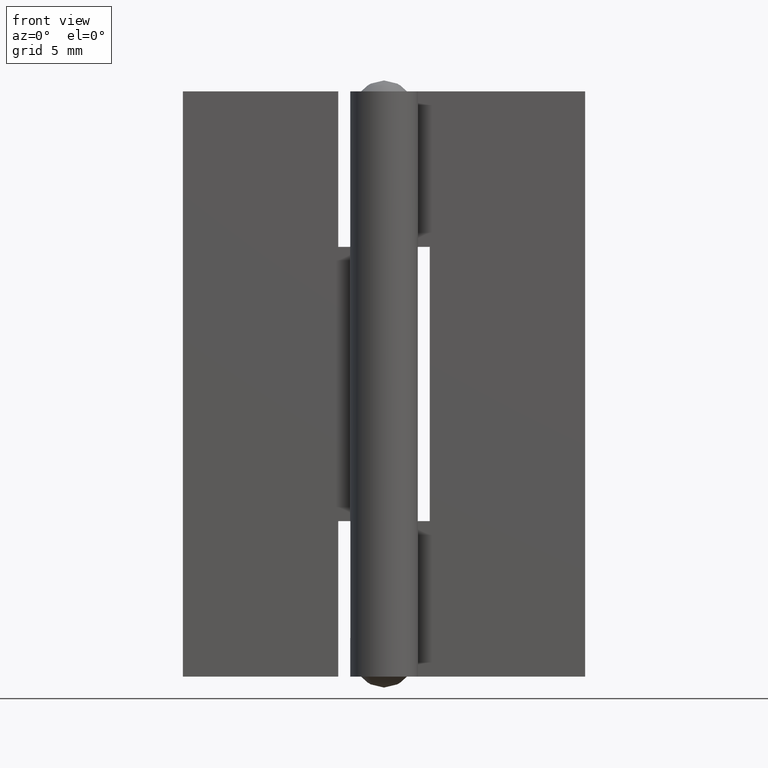
[diagram: clean part render]
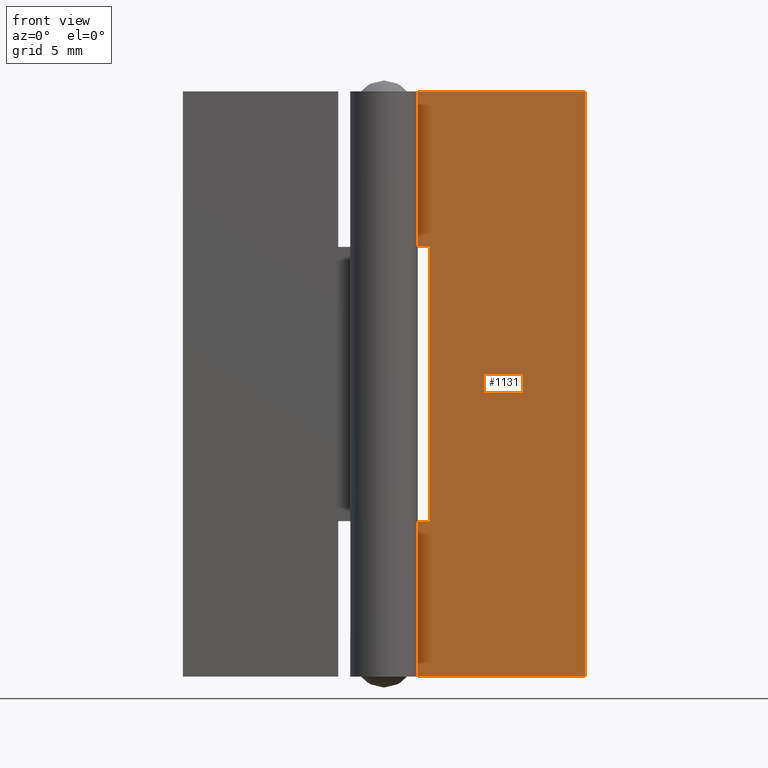
[diagram: same view with one face highlighted and labeled with its STEP entity id]
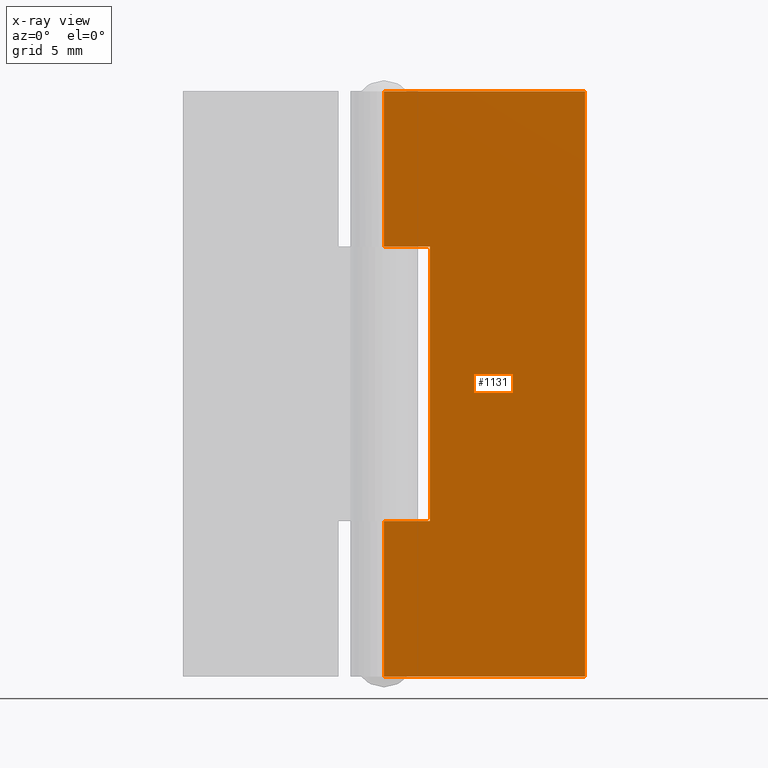
[diagram: x-ray of the same camera — body ghosted, the highlighted face saturated]
A machine part, front view. The second image highlights one B-rep face of the part: STEP entity #1131.
The next image is the same camera in x-ray: the body ghosted, the highlighted face saturated — about 0% of this face is hidden behind the body in this view.
In plain terms, the highlighted face is a freeform B-spline surface patch.
Its self-contained STEP definition (entity closure, byte-faithful):
#806=CARTESIAN_POINT('',(2.500000000000000,1.049998000000052,23.500000000000000));
#807=VERTEX_POINT('',#806);
#808=CARTESIAN_POINT('',(-0.002049389170382,1.049998000000000,23.500000000000000));
#809=VERTEX_POINT('',#808);
#810=CARTESIAN_POINT('',(2.500000000000000,1.049998000000052,23.500000000000000));
#811=CARTESIAN_POINT('',(-0.002049389170382,1.049998000000000,23.500000000000000));
#812=QUASI_UNIFORM_CURVE('',1,(#810,#811),.UNSPECIFIED.,.F.,.U.);
#813=EDGE_CURVE('',#807,#809,#812,.T.);
#861=CARTESIAN_POINT('',(-0.002049389170382,1.049998000000000,8.499999999999840));
#862=VERTEX_POINT('',#861);
#863=CARTESIAN_POINT('',(2.500000000000000,1.049998000000052,8.499999999999870));
#864=VERTEX_POINT('',#863);
#865=CARTESIAN_POINT('',(-0.002049389170382,1.049998000000000,8.499999999999840));
#866=CARTESIAN_POINT('',(2.500000000000000,1.049998000000052,8.499999999999870));
#867=QUASI_UNIFORM_CURVE('',1,(#865,#866),.UNSPECIFIED.,.F.,.U.);
#868=EDGE_CURVE('',#862,#864,#867,.T.);
#915=CARTESIAN_POINT('',(2.500000000000000,1.049998000000052,8.499999999999870));
#916=CARTESIAN_POINT('',(2.500000000000000,1.049998000000052,23.500000000000000));
#917=QUASI_UNIFORM_CURVE('',1,(#915,#916),.UNSPECIFIED.,.F.,.U.);
#918=EDGE_CURVE('',#864,#807,#917,.T.);
#931=CARTESIAN_POINT('',(-0.002049389170382,1.049998000000000,0.0));
#932=VERTEX_POINT('',#931);
#933=CARTESIAN_POINT('',(11.0,1.049999000000014,0.0));
#934=VERTEX_POINT('',#933);
#935=CARTESIAN_POINT('',(-0.002049389170382,1.049998000000000,0.0));
#936=CARTESIAN_POINT('',(11.0,1.049999000000014,0.0));
#937=QUASI_UNIFORM_CURVE('',1,(#935,#936),.UNSPECIFIED.,.F.,.U.);
#938=EDGE_CURVE('',#932,#934,#937,.T.);
#986=CARTESIAN_POINT('',(-0.002049389170382,1.049998000000000,32.0));
#987=VERTEX_POINT('',#986);
#988=CARTESIAN_POINT('',(11.0,1.049999000000014,32.0));
#989=VERTEX_POINT('',#988);
#990=CARTESIAN_POINT('',(-0.002049389170382,1.049998000000000,32.0));
#991=CARTESIAN_POINT('',(11.0,1.049999000000014,32.0));
#992=QUASI_UNIFORM_CURVE('',1,(#990,#991),.UNSPECIFIED.,.F.,.U.);
#993=EDGE_CURVE('',#987,#989,#992,.T.);
#1042=CARTESIAN_POINT('',(11.0,1.049999000000014,32.0));
#1043=CARTESIAN_POINT('',(11.0,1.049999000000014,0.0));
#1044=QUASI_UNIFORM_CURVE('',1,(#1042,#1043),.UNSPECIFIED.,.F.,.U.);
#1045=EDGE_CURVE('',#989,#934,#1044,.T.);
#1073=CARTESIAN_POINT('',(-0.002049389170382,1.049998000000000,32.0));
#1074=CARTESIAN_POINT('',(-0.002049389170382,1.049998000000000,23.500000000000000));
#1075=QUASI_UNIFORM_CURVE('',1,(#1073,#1074),.UNSPECIFIED.,.F.,.U.);
#1076=EDGE_CURVE('',#987,#809,#1075,.T.);
#1108=CARTESIAN_POINT('',(-0.002049389170382,1.049998000000000,8.499999999999840));
#1109=CARTESIAN_POINT('',(-0.002049389170382,1.049998000000000,0.0));
#1110=QUASI_UNIFORM_CURVE('',1,(#1108,#1109),.UNSPECIFIED.,.F.,.U.);
#1111=EDGE_CURVE('',#862,#932,#1110,.T.);
#1116=CARTESIAN_POINT('',(-0.551601734835336,1.049998000000000,-1.598399937977790));
#1117=CARTESIAN_POINT('',(-0.551601734835336,1.049998000000000,33.598400796284679));
#1118=CARTESIAN_POINT('',(11.549552640762920,1.049998000000000,-1.598399937977790));
#1119=CARTESIAN_POINT('',(11.549552640762920,1.049998000000000,33.598400796284679));
#1120=B_SPLINE_SURFACE_WITH_KNOTS('',1,1,((#1116,#1118),(#1117,#1119)),.UNSPECIFIED.,.F.,.F.,.U.,(2,2),(2,2),(0.0,35.196800734262467),(0.0,12.101154375598250),.UNSPECIFIED.);
#1121=ORIENTED_EDGE('',*,*,#868,.F.);
#1122=ORIENTED_EDGE('',*,*,#1111,.T.);
#1123=ORIENTED_EDGE('',*,*,#938,.T.);
#1124=ORIENTED_EDGE('',*,*,#1045,.F.);
#1125=ORIENTED_EDGE('',*,*,#993,.F.);
#1126=ORIENTED_EDGE('',*,*,#1076,.T.);
#1127=ORIENTED_EDGE('',*,*,#813,.F.);
#1128=ORIENTED_EDGE('',*,*,#918,.F.);
#1129=EDGE_LOOP('',(#1121,#1122,#1123,#1124,#1125,#1126,#1127,#1128));
#1130=FACE_OUTER_BOUND('',#1129,.T.);
#1131=ADVANCED_FACE('',(#1130),#1120,.F.);